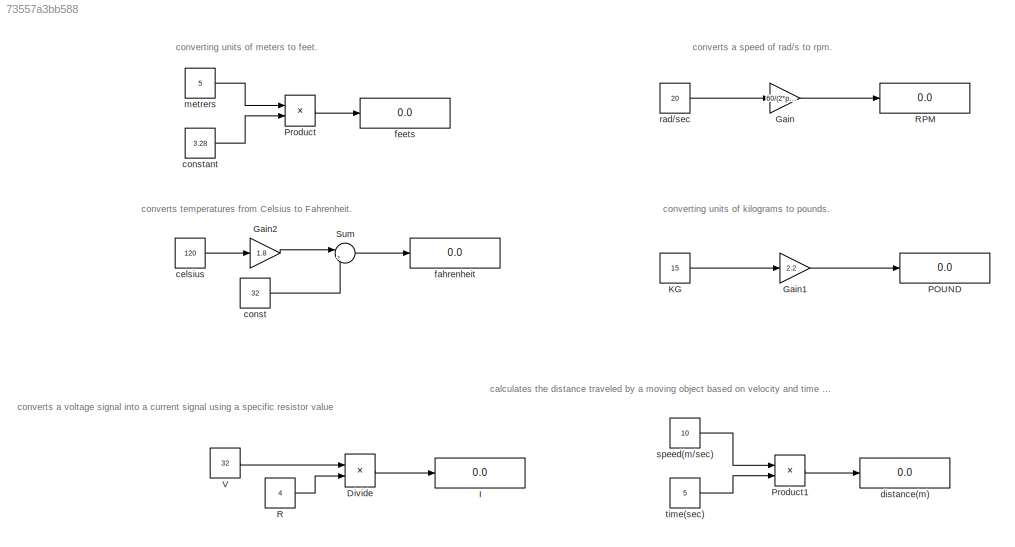
MODEL slx_73557a3bb588
KIND model
CONFIG AbsTol = auto
CONFIG EnableMultiTasking = off
CONFIG FixedStep = auto
CONFIG MaxStep = auto
CONFIG MinStep = auto
CONFIG RelTol = 1e-3
CONFIG SampleTimeConstraint = Unconstrained
CONFIG SolverName = VariableStepAuto
CONFIG StartTime = 0.0
CONFIG StopTime = 10.0
BLOCK [Product] Divide
  Inputs = */
  RndMeth = Zero
  SaturateOnIntegerOverflow = on
BLOCK [Gain] Gain
  Gain = 60/(2*pi)
BLOCK [Gain] Gain1
  Gain = 2.2
BLOCK [Gain] Gain2
  Gain = 1.8
BLOCK [Display] I
  Decimation = 1
BLOCK [Constant] KG
  Value = 15
BLOCK [Display] POUND
  Decimation = 1
BLOCK [Product] Product
BLOCK [Product] Product1
BLOCK [Constant] R
  Value = 4
BLOCK [Display] RPM
  Decimation = 1
BLOCK [Sum] Sum
  Inputs = |++
BLOCK [Constant] V
  Value = 32
BLOCK [Constant] celsius
  Value = 120
BLOCK [Constant] const
  Value = 32
BLOCK [Constant] constant
  Value = 3.28
BLOCK [Display] distance(m)
  Decimation = 1
BLOCK [Display] fahrenheit
  Decimation = 1
BLOCK [Display] feets
  Decimation = 1
BLOCK [Constant] metrers
  Value = 5
BLOCK [Constant] rad//sec
  Value = 20
BLOCK [Constant] speed(m//sec)
  Value = 10
BLOCK [Constant] time(sec)
  Value = 5
ANNOTATION (root): converting units of kilograms to pounds.
ANNOTATION (root): converts temperatures from Celsius to Fahrenheit.
ANNOTATION (root): calculates the distance traveled by a moving object based on velocity and time inputs.
ANNOTATION (root): converting units of meters to feet.
ANNOTATION (root): converts a voltage signal into a current signal using a specific resistor value
ANNOTATION (root): converts a speed of rad/s to rpm.
LINE Divide:1 -> I:1
LINE Gain1:1 -> POUND:1
LINE Gain2:1 -> Sum:1
LINE Gain:1 -> RPM:1
LINE KG:1 -> Gain1:1
LINE Product1:1 -> distance(m):1
LINE Product:1 -> feets:1
LINE R:1 -> Divide:2
LINE Sum:1 -> fahrenheit:1
LINE V:1 -> Divide:1
LINE celsius:1 -> Gain2:1
LINE const:1 -> Sum:2
LINE constant:1 -> Product:2
LINE metrers:1 -> Product:1
LINE rad//sec:1 -> Gain:1
LINE speed(m//sec):1 -> Product1:1
LINE time(sec):1 -> Product1:2
